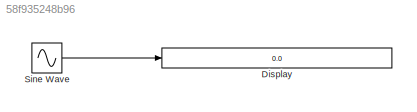
MODEL slx_58f935248b96
KIND model
CONFIG AbsTol = auto
CONFIG FixedStep = auto
CONFIG MaxStep = auto
CONFIG MinStep = auto
CONFIG RelTol = 1e-3
CONFIG SampleTimeConstraint = Unconstrained
CONFIG Solver = VariableStepAuto
CONFIG SolverMode = Auto
CONFIG SolverName = VariableStepAuto
CONFIG StartTime = 0.0
CONFIG StopTime = 10.0
BLOCK [Display] Display
  Decimation = 1
  Ports = [1]
BLOCK [Sin] Sine Wave
  Phase = [1 2 3]
  Ports = [0, 1]
  SampleTime = 0
LINE Sine Wave:1 -> Display:1
